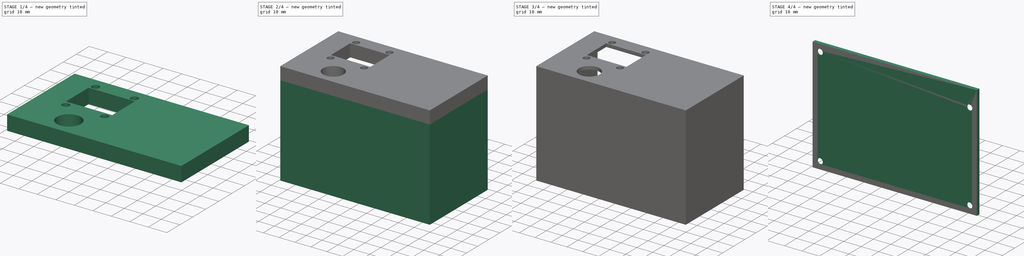
[diagram: build sequence overview — one tinted view per stage of 4, left to right]
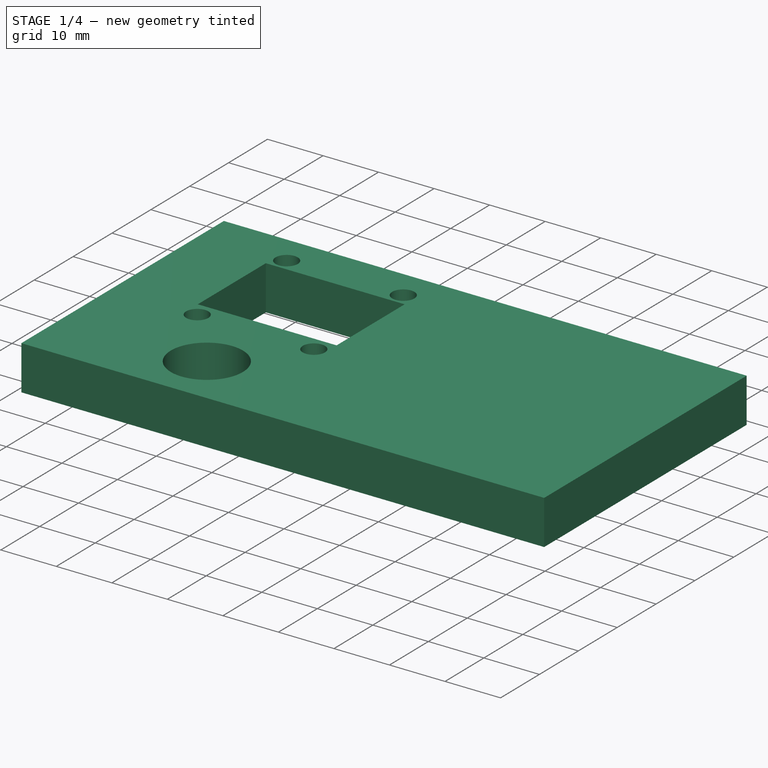
[diagram: stage 1 of 4 — iso view after this stage's code; geometry added in this stage tinted green]
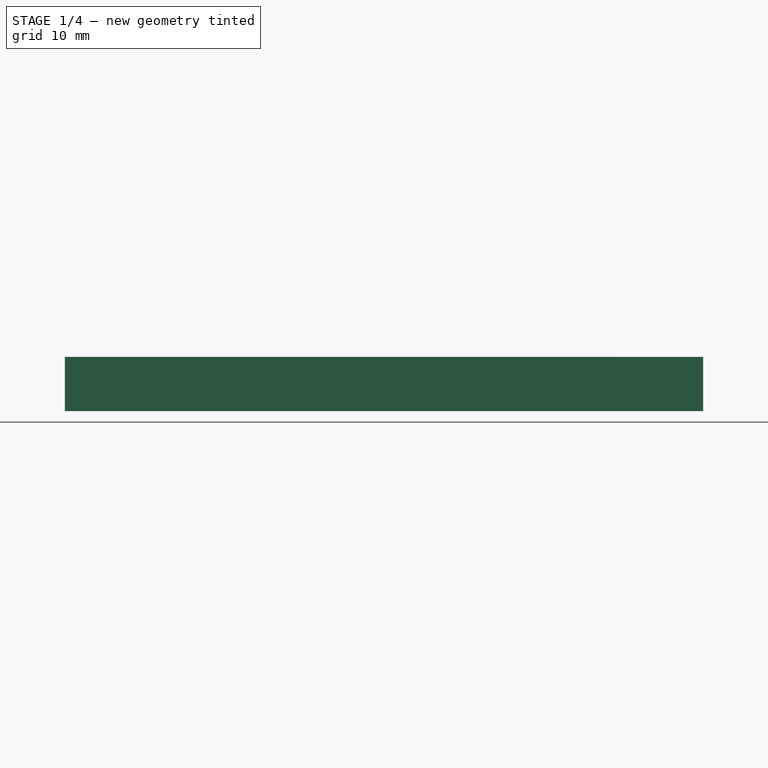
[diagram: stage 1 of 4 — front view after this stage's code; geometry added in this stage tinted green]
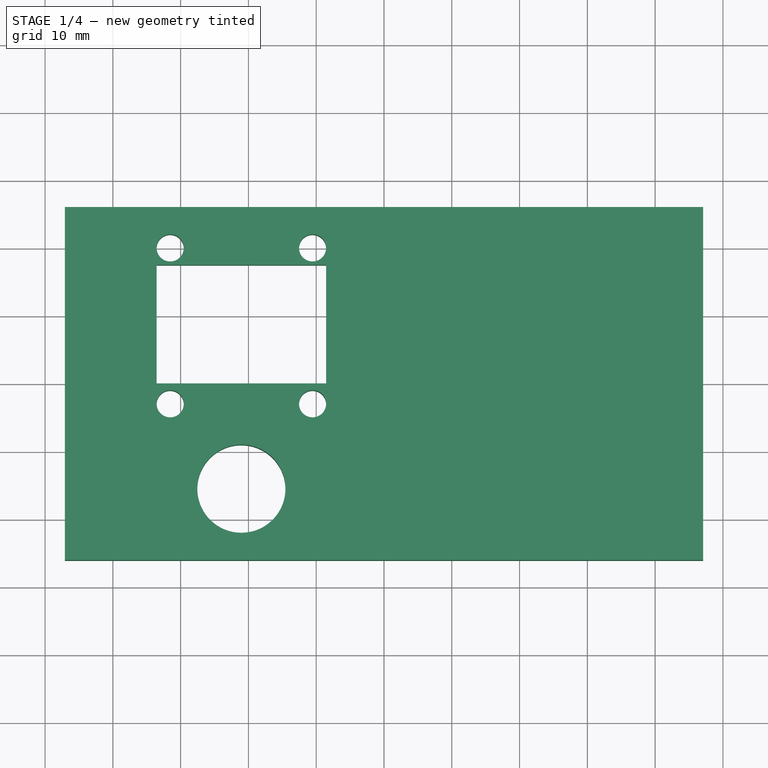
[diagram: stage 1 of 4 — top view after this stage's code; geometry added in this stage tinted green]
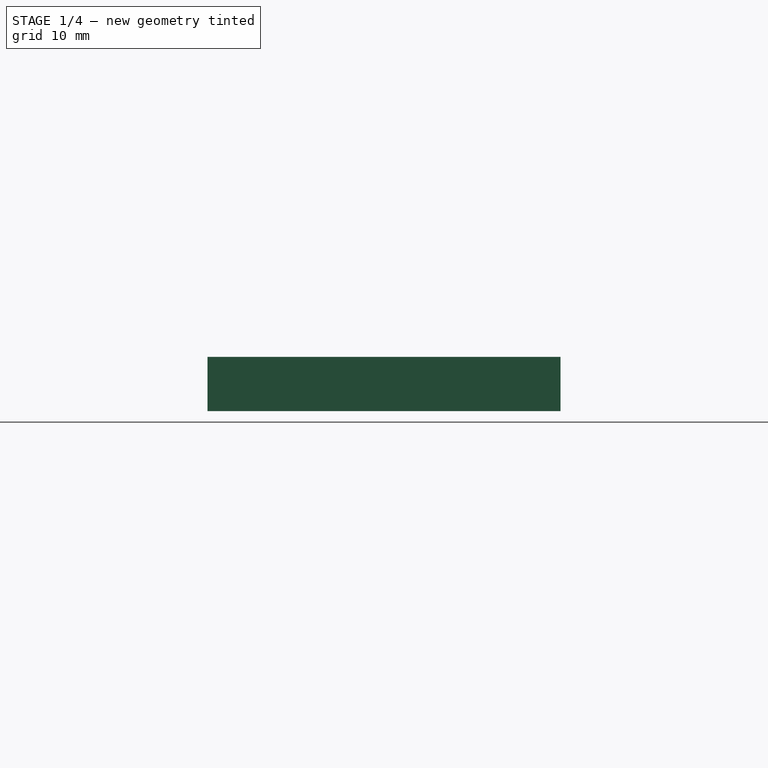
[diagram: stage 1 of 4 — right view after this stage's code; geometry added in this stage tinted green]
FCSTD DOCUMENT  (FreeCAD 0.20RUnknown)
Label: puzzle_case
License: All rights reserved
LicenseURL: http://en.wikipedia.org/wiki/All_rights_reserved
objects: Sketcher::SketchObject×11, PartDesign::Pad×7, PartDesign::Pocket×4, PartDesign::Body×2, PartDesign::ShapeBinder×1, PartDesign::Chamfer×1
note: 38 computed .brp shape members not serialized (recipe doc carries the construction recipe); baked Part::Feature solids carry a one-line shape summary decoded from their .brp

FEATURE [Sketcher::SketchObject] Sketch
  FullyConstrained = true
  MapMode = 5
  Support = -> [XY_Plane]
  expr: Constraints[53] = 90mm + 2 * .Constraints.wall_thickness
  sketch-geometry (26):
    g0: LineSegment StartX=-47.08 StartY=26.04 StartZ=0 EndX=47.08 EndY=26.04 EndZ=0
    g1: LineSegment StartX=47.08 StartY=26.04 StartZ=0 EndX=47.08 EndY=-26.04 EndZ=0
    g2: LineSegment StartX=47.08 StartY=-26.04 StartZ=0 EndX=-47.08 EndY=-26.04 EndZ=0
    g3: LineSegment StartX=-47.08 StartY=-26.04 StartZ=0 EndX=-47.08 EndY=26.04 EndZ=0
    g4: LineSegment StartX=-33.54 StartY=22.0133 StartZ=0 EndX=-8.54 EndY=22.0133 EndZ=0
    g5: LineSegment StartX=-8.54 StartY=22.0133 StartZ=0 EndX=-8.54 EndY=-4.98667 EndZ=0
    g6: LineSegment StartX=-8.54 StartY=-4.98667 StartZ=0 EndX=-33.54 EndY=-4.98667 EndZ=0
    g7: LineSegment StartX=-33.54 StartY=-4.98667 StartZ=0 EndX=-33.54 EndY=22.0133 EndZ=0
    g8: Circle CenterX=-10.54 CenterY=20.0133 CenterZ=0 NormalX=0 NormalY=0 NormalZ=1 AngleXU=0 Radius=2
    g9: Circle CenterX=-31.54 CenterY=-2.98667 CenterZ=0 NormalX=0 NormalY=0 NormalZ=1 AngleXU=0 Radius=2
    g10: Circle CenterX=-31.54 CenterY=20.0133 CenterZ=0 NormalX=0 NormalY=0 NormalZ=1 AngleXU=0 Radius=2
    g11: Circle CenterX=-10.54 CenterY=-2.98667 CenterZ=0 NormalX=0 NormalY=0 NormalZ=1 AngleXU=0 Radius=2
    g12: LineSegment StartX=-33.54 StartY=17.5133 StartZ=0 EndX=-8.54 EndY=17.5133 EndZ=0
    g13: LineSegment StartX=-8.54 StartY=17.5133 StartZ=0 EndX=-8.54 EndY=0.0133333 EndZ=0
    g14: LineSegment StartX=-8.54 StartY=0.0133333 StartZ=0 EndX=-33.54 EndY=0.0133333 EndZ=0
    g15: LineSegment StartX=-33.54 StartY=0.0133333 StartZ=0 EndX=-33.54 EndY=17.5133 EndZ=0
    g16: Circle CenterX=-21.04 CenterY=-15.5133 CenterZ=0 NormalX=0 NormalY=0 NormalZ=1 AngleXU=0 Radius=6.5
    g17: LineSegment StartX=5 StartY=26.04 StartZ=0 EndX=45 EndY=26.04 EndZ=0
    g18: LineSegment StartX=45 StartY=26.04 StartZ=0 EndX=45 EndY=-23.96 EndZ=0
    g19: LineSegment StartX=45 StartY=-23.96 StartZ=0 EndX=5 EndY=-23.96 EndZ=0
    g20: LineSegment StartX=5 StartY=-23.96 StartZ=0 EndX=5 EndY=26.04 EndZ=0
    g21: LineSegment StartX=-47.08 StartY=-4.98667 StartZ=0 EndX=-33.54 EndY=-4.98667 EndZ=0
    g22: LineSegment StartX=-8.54 StartY=-4.98667 StartZ=0 EndX=5 EndY=-4.98667 EndZ=0
    g23: LineSegment StartX=-21.04 StartY=-4.98667 StartZ=0 EndX=-21.04 EndY=-9.01333 EndZ=0
    g24: LineSegment StartX=-21.04 StartY=-22.0133 StartZ=0 EndX=-21.04 EndY=-26.04 EndZ=0
    g25: LineSegment StartX=-33.54 StartY=26.04 StartZ=0 EndX=-33.54 EndY=22.0133 EndZ=0
  constraints (78):
    c: Coincident(g0,g1)
    c: Coincident(g1,g2)
    c: Coincident(g2,g3)
    c: Coincident(g3,g0)
    c: Horizontal(g0)
    c: Horizontal(g2)
    c: Vertical(g1)
    c: Vertical(g3)
    c: Coincident(g4,g5)
    c: Coincident(g5,g6)
    c: Coincident(g6,g7)
    c: Coincident(g7,g4)
    c: Horizontal(g4)
    c: Horizontal(g6)
    c: Vertical(g5)
    c: Vertical(g7)
    c: DistanceX(g4,g4) = 25
    c: DistanceY(g5,g5) = 27
    c: Radius(g8) = 2
    c: Tangent(g8,g4)
    c: Tangent(g8,g5)
    c: Equal(g8,g9)
    c: Equal(g8,g10)
    c: Equal(g11,g8)
    c: Tangent(g10,g4)
    c: Tangent(g10,g7)
    c: Tangent(g9,g7)
    c: Tangent(g11,g5)
    c: Tangent(g9,g6)
    c: Tangent(g11,g6)
    c: Coincident(g12,g13)
    c: Coincident(g13,g14)
    c: Coincident(g14,g15)
    c: Coincident(g15,g12)
    c: Horizontal(g12)
    c: Horizontal(g14)
    c: Vertical(g13)
    c: Vertical(g15)
    c: Distance(g12,g4) = 4.5
    c: Distance(g13,g6) = 5
    c: PointOnObject(g12,g7)
    c: PointOnObject(g12,g5)
    c: Radius(g16) = 6.5
    c: Coincident(g17,g18)
    c: Coincident(g18,g19)
    c: Coincident(g19,g20)
    c: Coincident(g20,g17)
    c: Horizontal(g17)
    c: Horizontal(g19)
    c: Vertical(g18)
    c: Vertical(g20)
    c: DistanceX(g19,g19) = 40  'pocket_width'
    c: DistanceY(g18,g18) = 50  'pocket_depth'
    c: DistanceX(g2,g2) = 94.16
    c: Distance(g17,g1) = 2.08  'wall_thickness'
    c: Distance(g18,g2) = 2.08
    c: PointOnObject(g17,g0)
    c: Horizontal(g21)
    c: PointOnObject(g21,g3)
    c: PointOnObject(g22,g20)
    c: Horizontal(g22)
    c: Equal(g22,g21)
    c: PointOnObject(g23,g16)
    c: Vertical(g23)
    c: PointOnObject(g16,g23)
    c: PointOnObject(g24,g16)
    c: PointOnObject(g24,g2)
    c: Vertical(g24)
    c: PointOnObject(g16,g24)
    c: Equal(g23,g24)
    c: Symmetric(g6,g5,g23)
    c: PointOnObject(g25,g0)
    c: Vertical(g25)
    c: Equal(g25,g23)
    c: Symmetric(g0,g1,g-1)
    c: Coincident(g21,g6)
    c: Coincident(g22,g5)
    c: Coincident(g25,g4)
FEATURE [PartDesign::Pad] Pad
  Direction = (0,0,1)
  Length = 8
  Length2 = 10
  Profile = -> Sketch
  ReferenceAxis = -> Sketch [N_Axis]
  Type = 0
FEATURE [Sketcher::SketchObject] Sketch001
  ExternalGeometry = -> [Pad]
  FullyConstrained = true
  MapMode = 5
  Placement = pos=(0,26.04,0) rot=(0,0.707107,0.707107;3.14159rad)
  Support = -> [Pad]
  expr: Constraints[10] = Sketch.Constraints.wall_thickness
  expr: Constraints[9] = Sketch.Constraints.pocket_width
  sketch-geometry (7):
    g0: LineSegment StartX=-45 StartY=6 StartZ=0 EndX=-5 EndY=6 EndZ=0
    g1: LineSegment StartX=-5 StartY=6 StartZ=0 EndX=-5 EndY=2 EndZ=0
    g2: LineSegment StartX=-5 StartY=2 StartZ=0 EndX=-45 EndY=2 EndZ=0
    g3: LineSegment StartX=-45 StartY=2 StartZ=0 EndX=-45 EndY=6 EndZ=0
    g4: GeomPoint X=-45 Y=4 Z=0
    g5: GeomPoint X=-47.08 Y=4 Z=0
    g6: LineSegment StartX=-47.08 StartY=4 StartZ=0 EndX=-45 EndY=4 EndZ=0
  constraints (16):
    c: Coincident(g0,g1)
    c: Coincident(g1,g2)
    c: Coincident(g2,g3)
    c: Coincident(g3,g0)
    c: Horizontal(g0)
    c: Horizontal(g2)
    c: Vertical(g1)
    c: Vertical(g3)
    c: DistanceY(g3,g3) = 4
    c: DistanceX(g0,g0) = 40
    c: Distance(g0,g-3) = 2.08
    c: Symmetric(g0,g2,g4)
    c: Symmetric(g-3,g-3,g5)
    c: Coincident(g6,g5)
    c: Coincident(g6,g4)
    c: Horizontal(g6)
FEATURE [PartDesign::Pocket] Pocket
  BaseFeature = -> Pad
  Direction = (0,-1,2e-16)
  Length = 50
  Length2 = 5
  Profile = -> Sketch001
  ReferenceAxis = -> Sketch001 [N_Axis]
  Type = 0
  expr: Length = Sketch.Constraints.pocket_depth
FEATURE [Sketcher::SketchObject] Sketch002
  ExternalGeometry = -> [Pocket]
  FullyConstrained = true
  MapMode = 5
  Placement = pos=(0,26.04,0) rot=(0,0.707107,0.707107;3.14159rad)
  Support = -> [Pocket]
  sketch-geometry (4):
    g0: LineSegment StartX=-5 StartY=6 StartZ=0 EndX=-1 EndY=6 EndZ=0
    g1: LineSegment StartX=-1 StartY=6 StartZ=0 EndX=-1 EndY=0 EndZ=0
    g2: LineSegment StartX=-1 StartY=0 StartZ=0 EndX=-5 EndY=0 EndZ=0
    g3: LineSegment StartX=-5 StartY=0 StartZ=0 EndX=-5 EndY=6 EndZ=0
  constraints (11):
    c: Coincident(g0,g1)
    c: Coincident(g1,g2)
    c: Coincident(g2,g3)
    c: Coincident(g3,g0)
    c: Horizontal(g0)
    c: Horizontal(g2)
    c: Vertical(g1)
    c: Vertical(g3)
    c: PointOnObject(g2,g-1)
    c: Coincident(g0,g-3)
    c: DistanceX(g0,g0) = 4
FEATURE [PartDesign::Pocket] Pocket001
  BaseFeature = -> Pocket
  Direction = (0,-1,2e-16)
  Length = 4
  Length2 = 5
  Profile = -> Sketch002
  ReferenceAxis = -> Sketch002 [N_Axis]
  Type = 0
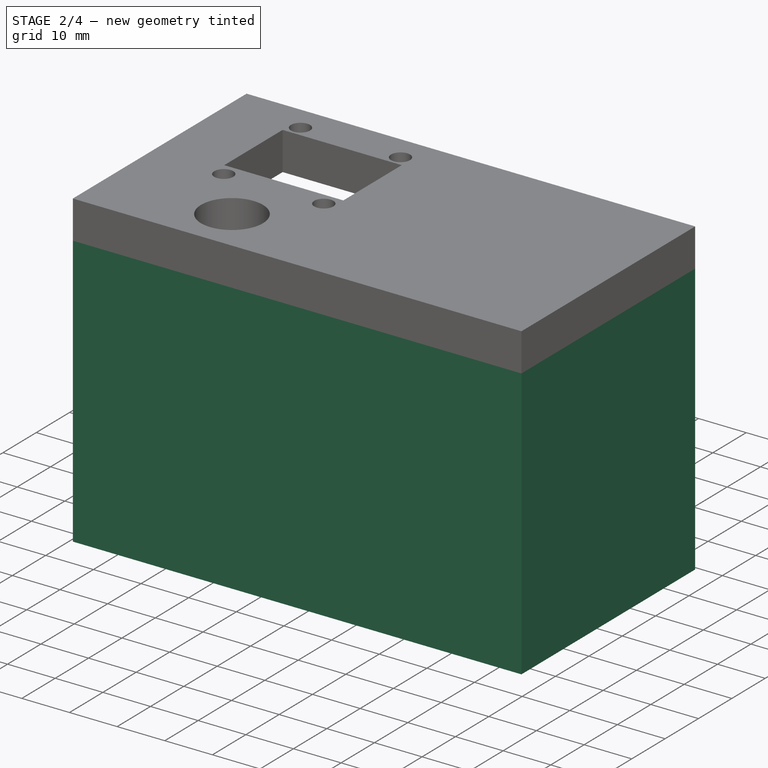
[diagram: stage 2 of 4 — iso view after this stage's code; geometry added in this stage tinted green]
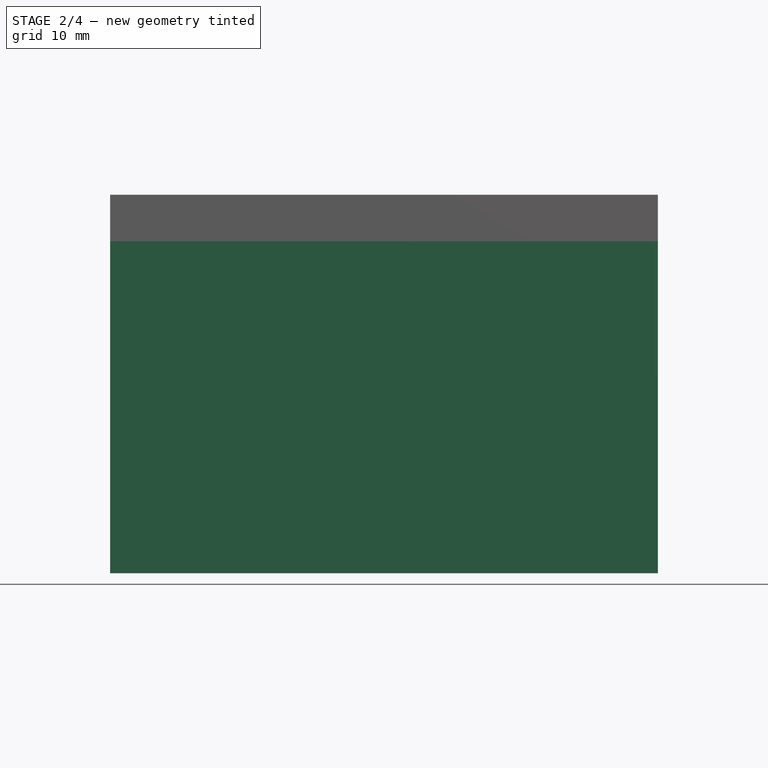
[diagram: stage 2 of 4 — front view after this stage's code; geometry added in this stage tinted green]
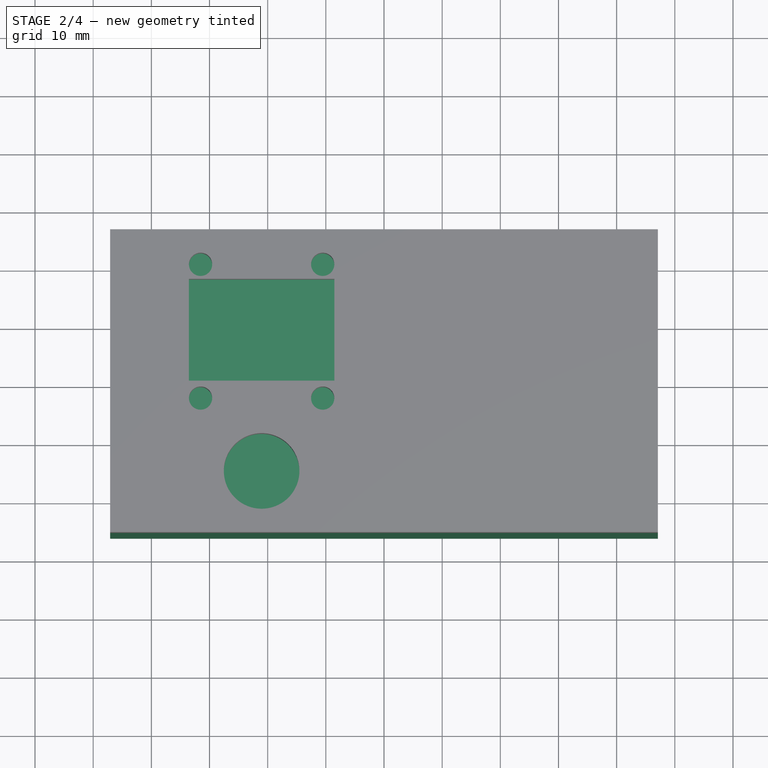
[diagram: stage 2 of 4 — top view after this stage's code; geometry added in this stage tinted green]
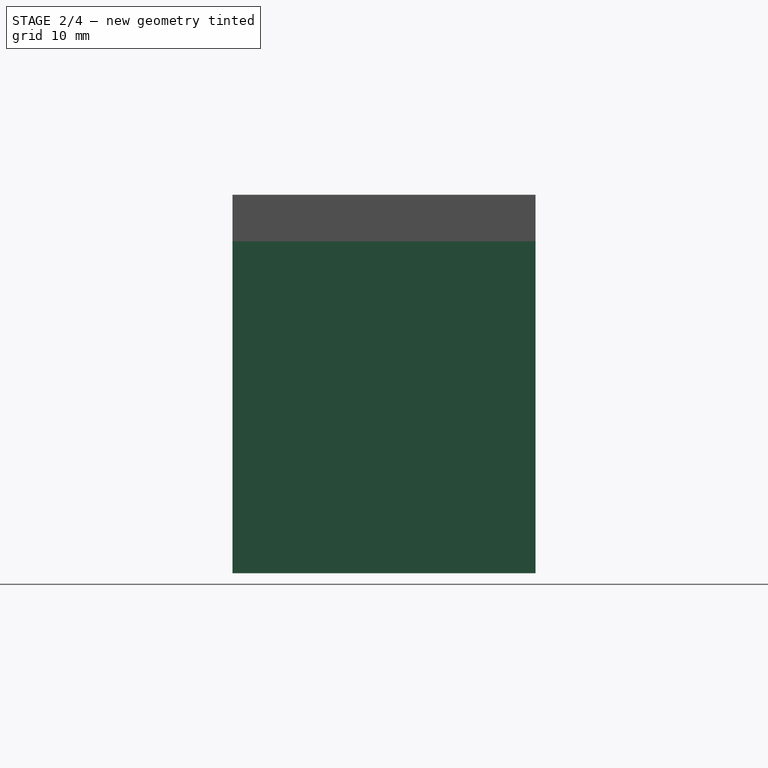
[diagram: stage 2 of 4 — right view after this stage's code; geometry added in this stage tinted green]
FEATURE [Sketcher::SketchObject] Sketch003
  ExternalGeometry = -> [Pocket001]
  FullyConstrained = true
  MapMode = 5
  Placement = pos=(0,0,0) rot=(1,0,0;3.14159rad)
  Support = -> [Pocket001]
  expr: Constraints[5] = Sketch.Constraints.wall_thickness
  expr: Constraints[6] = Sketch.Constraints.wall_thickness
  expr: Constraints[7] = Sketch.Constraints.wall_thickness
  sketch-geometry (8):
    g0: LineSegment StartX=-45 StartY=23.96 StartZ=0 EndX=45 EndY=23.96 EndZ=0
    g1: LineSegment StartX=45 StartY=23.96 StartZ=0 EndX=45 EndY=-26.04 EndZ=0
    g2: LineSegment StartX=-45 StartY=-26.04 StartZ=0 EndX=-45 EndY=23.96 EndZ=0
    g3: LineSegment StartX=-47.08 StartY=26.04 StartZ=0 EndX=47.08 EndY=26.04 EndZ=0
    g4: LineSegment StartX=47.08 StartY=26.04 StartZ=0 EndX=47.08 EndY=-26.04 EndZ=0
    g5: LineSegment StartX=-47.08 StartY=-26.04 StartZ=0 EndX=-47.08 EndY=26.04 EndZ=0
    g6: LineSegment StartX=-47.08 StartY=-26.04 StartZ=0 EndX=-45 EndY=-26.04 EndZ=0
    g7: LineSegment StartX=45 StartY=-26.04 StartZ=0 EndX=47.08 EndY=-26.04 EndZ=0
  constraints (22):
    c: Coincident(g0,g1)
    c: Coincident(g2,g0)
    c: Horizontal(g0)
    c: Vertical(g1)
    c: Vertical(g2)
    c: Distance(g0,g-4) = 2.08
    c: Distance(g0,g-5) = 2.08
    c: Distance(g2,g-3) = 2.08
    c: Coincident(g3,g4)
    c: Coincident(g5,g3)
    c: Horizontal(g3)
    c: Vertical(g4)
    c: Vertical(g5)
    c: Coincident(g-4,g3)
    c: Coincident(g-6,g4)
    c: PointOnObject(g2,g-8)
    c: PointOnObject(g1,g-6)
    c: Coincident(g6,g5)
    c: Coincident(g6,g2)
    c: Horizontal(g6)
    c: Coincident(g7,g1)
    c: Coincident(g7,g4)
FEATURE [PartDesign::Pad] Pad001
  BaseFeature = -> Pocket001
  Direction = (0,0,-1)
  Length = 55
  Length2 = 10
  Profile = -> Sketch003
  ReferenceAxis = -> Sketch003 [N_Axis]
  Type = 0
FEATURE [Sketcher::SketchObject] Sketch004
  ExternalGeometry = -> [Pad001]
  FullyConstrained = true
  MapMode = 5
  Placement = pos=(0,0,-55) rot=(1,0,0;3.14159rad)
  Support = -> [Pad001]
  sketch-geometry (4):
    g0: LineSegment StartX=-47.08 StartY=26.04 StartZ=0 EndX=47.08 EndY=26.04 EndZ=0
    g1: LineSegment StartX=47.08 StartY=26.04 StartZ=0 EndX=47.08 EndY=-26.04 EndZ=0
    g2: LineSegment StartX=47.08 StartY=-26.04 StartZ=0 EndX=-47.08 EndY=-26.04 EndZ=0
    g3: LineSegment StartX=-47.08 StartY=-26.04 StartZ=0 EndX=-47.08 EndY=26.04 EndZ=0
  constraints (10):
    c: Coincident(g0,g1)
    c: Coincident(g1,g2)
    c: Coincident(g2,g3)
    c: Coincident(g3,g0)
    c: Horizontal(g0)
    c: Horizontal(g2)
    c: Vertical(g1)
    c: Vertical(g3)
    c: Coincident(g-3,g0)
    c: Coincident(g1,g-4)
FEATURE [PartDesign::Pad] Pad002
  BaseFeature = -> Pad001
  Direction = (0,0,-1)
  Length = 2.08
  Length2 = 10
  Profile = -> Sketch004
  ReferenceAxis = -> Sketch004 [N_Axis]
  Type = 0
  expr: Length = Sketch.Constraints.wall_thickness
FEATURE [Sketcher::SketchObject] Sketch005
  ExternalGeometry = -> [Pad002]
  FullyConstrained = true
  MapMode = 5
  Placement = pos=(0,-23.96,0) rot=(0,0.707107,0.707107;3.14159rad)
  Support = -> [Pad002]
  sketch-geometry (16):
    g0: LineSegment StartX=-30 StartY=-37 StartZ=0 EndX=-25 EndY=-37 EndZ=0
    g1: LineSegment StartX=-25 StartY=-37 StartZ=0 EndX=-25 EndY=-42 EndZ=0
    g2: LineSegment StartX=-25 StartY=-42 StartZ=0 EndX=-30 EndY=-42 EndZ=0
    g3: LineSegment StartX=-30 StartY=-42 StartZ=0 EndX=-30 EndY=-37 EndZ=0
    g4: LineSegment StartX=-30 StartY=-27 StartZ=0 EndX=-25 EndY=-27 EndZ=0
    g5: LineSegment StartX=-25 StartY=-27 StartZ=0 EndX=-25 EndY=-32 EndZ=0
    g6: LineSegment StartX=-25 StartY=-32 StartZ=0 EndX=-30 EndY=-32 EndZ=0
    g7: LineSegment StartX=-30 StartY=-32 StartZ=0 EndX=-30 EndY=-27 EndZ=0
    g8: LineSegment StartX=-5 StartY=-27 StartZ=0 EndX=5.3e-15 EndY=-27 EndZ=0
    g9: LineSegment StartX=5.3e-15 StartY=-27 StartZ=0 EndX=5.3e-15 EndY=-32 EndZ=0
    g10: LineSegment StartX=5.3e-15 StartY=-32 StartZ=0 EndX=-5 EndY=-32 EndZ=0
    g11: LineSegment StartX=-5 StartY=-32 StartZ=0 EndX=-5 EndY=-27 EndZ=0
    g12: LineSegment StartX=-5 StartY=-37 StartZ=0 EndX=5.3e-15 EndY=-37 EndZ=0
    g13: LineSegment StartX=5.3e-15 StartY=-37 StartZ=0 EndX=5.3e-15 EndY=-42 EndZ=0
    g14: LineSegment StartX=5.3e-15 StartY=-42 StartZ=0 EndX=-5 EndY=-42 EndZ=0
    g15: LineSegment StartX=-5 StartY=-42 StartZ=0 EndX=-5 EndY=-37 EndZ=0
  constraints (48):
    c: Coincident(g0,g1)
    c: Coincident(g1,g2)
    c: Coincident(g2,g3)
    c: Coincident(g3,g0)
    c: Horizontal(g0)
    c: Horizontal(g2)
    c: Vertical(g1)
    c: Vertical(g3)
    c: Coincident(g4,g5)
    c: Coincident(g5,g6)
    c: Coincident(g6,g7)
    c: Coincident(g7,g4)
    c: Horizontal(g4)
    c: Horizontal(g6)
    c: Vertical(g5)
    c: Vertical(g7)
    c: PointOnObject(g0,g7)
    c: PointOnObject(g0,g5)
    c: Distance(g6,g0) = 5
    c: DistanceY(g3,g3) = 5
    c: Equal(g3,g7)
    c: DistanceX(g4,g4) = 5
    c: Distance(g0,g-3) = 18
    c: Coincident(g8,g9)
    c: Coincident(g9,g10)
    c: Coincident(g10,g11)
    c: Coincident(g11,g8)
    c: Horizontal(g8)
    c: Horizontal(g10)
    c: Vertical(g9)
    c: Vertical(g11)
    c: Coincident(g12,g13)
    c: Coincident(g13,g14)
    c: Coincident(g14,g15)
    c: Coincident(g15,g12)
    c: Horizontal(g12)
    c: Horizontal(g14)
    c: Vertical(g13)
    c: Vertical(g15)
    c: PointOnObject(g10,g15)
    c: PointOnObject(g9,g13)
    c: Equal(g15,g11)
    c: Equal(g8,g4)
    c: Equal(g15,g3)
    c: PointOnObject(g12,g0)
    c: PointOnObject(g5,g10)
    c: Distance(g4,g11) = 20
    c: Distance(g4,g-4) = 15
FEATURE [PartDesign::Pad] Pad003
  BaseFeature = -> Pad002
  Direction = (0,1,-2e-16)
  Length = 3
  Length2 = 10
  Profile = -> Sketch005
  ReferenceAxis = -> Sketch005 [N_Axis]
  Type = 0
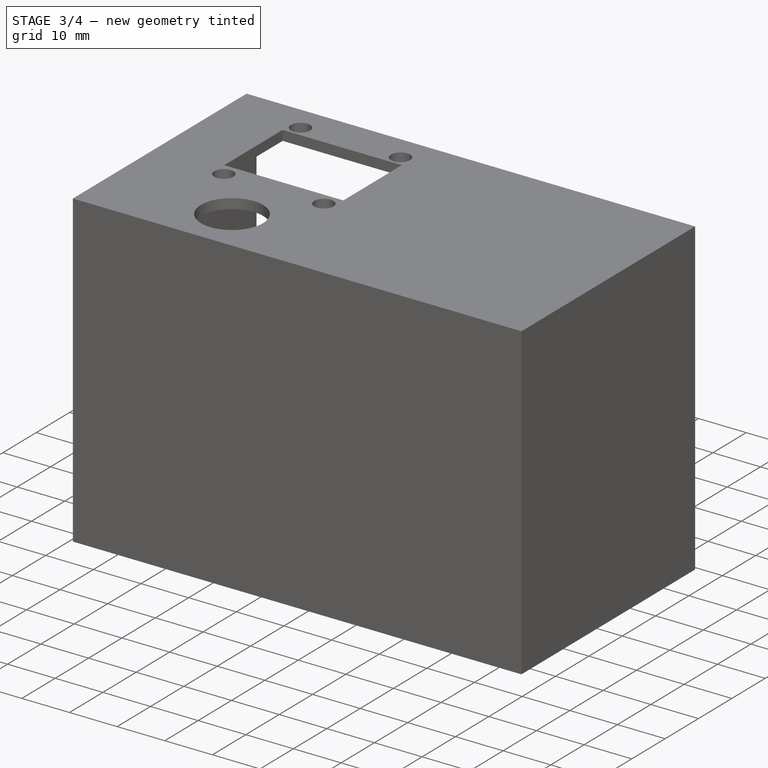
[diagram: stage 3 of 4 — iso view after this stage's code; geometry added in this stage tinted green]
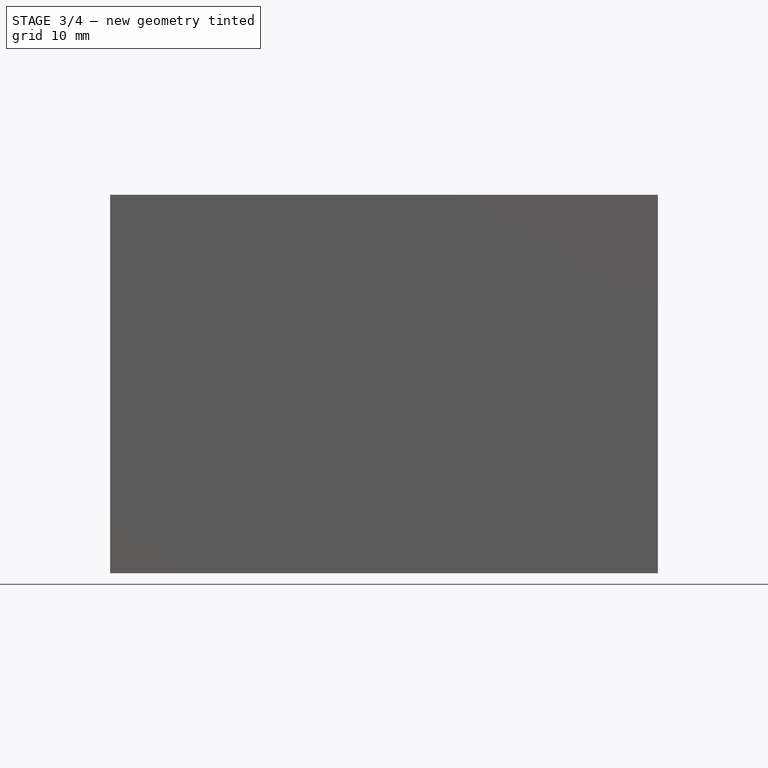
[diagram: stage 3 of 4 — front view after this stage's code; geometry added in this stage tinted green]
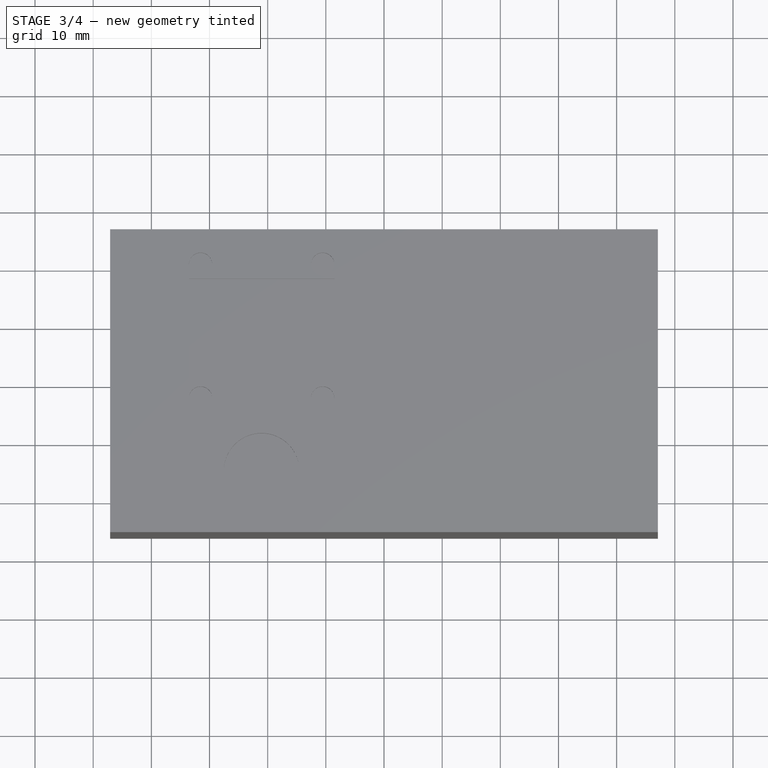
[diagram: stage 3 of 4 — top view after this stage's code; geometry added in this stage tinted green]
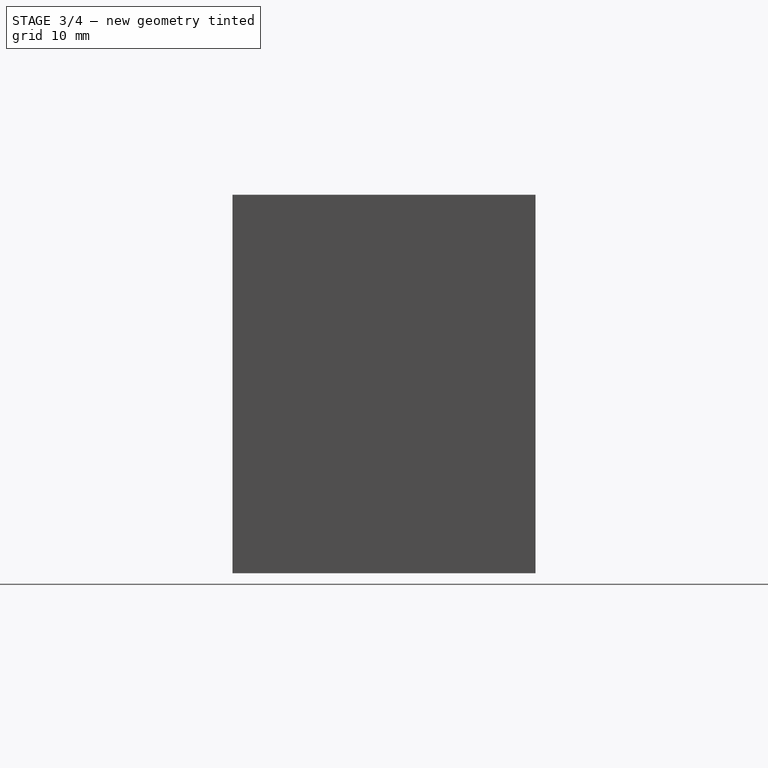
[diagram: stage 3 of 4 — right view after this stage's code; geometry added in this stage tinted green]
FEATURE [Sketcher::SketchObject] Sketch006
  ExternalGeometry = -> [Pad003]
  FullyConstrained = true
  MapMode = 5
  Placement = pos=(0,-20.96,4.5e-15) rot=(0,0.707107,0.707107;3.14159rad)
  Support = -> [Pad003]
  sketch-geometry (8):
    g0: LineSegment StartX=-30 StartY=-27 StartZ=0 EndX=-25 EndY=-27 EndZ=0
    g1: LineSegment StartX=-25 StartY=-27 StartZ=0 EndX=-25 EndY=-42 EndZ=0
    g2: LineSegment StartX=-25 StartY=-42 StartZ=0 EndX=-30 EndY=-42 EndZ=0
    g3: LineSegment StartX=-30 StartY=-42 StartZ=0 EndX=-30 EndY=-27 EndZ=0
    g4: LineSegment StartX=-5 StartY=-27 StartZ=0 EndX=0 EndY=-27 EndZ=0
    g5: LineSegment StartX=0 StartY=-27 StartZ=0 EndX=0 EndY=-42 EndZ=0
    g6: LineSegment StartX=0 StartY=-42 StartZ=0 EndX=-5 EndY=-42 EndZ=0
    g7: LineSegment StartX=-5 StartY=-42 StartZ=0 EndX=-5 EndY=-27 EndZ=0
  constraints (20):
    c: Coincident(g0,g1)
    c: Coincident(g1,g2)
    c: Coincident(g2,g3)
    c: Coincident(g3,g0)
    c: Horizontal(g0)
    c: Horizontal(g2)
    c: Vertical(g1)
    c: Vertical(g3)
    c: Coincident(g0,g-6)
    c: Coincident(g1,g-5)
    c: Coincident(g4,g5)
    c: Coincident(g5,g6)
    c: Coincident(g6,g7)
    c: Coincident(g7,g4)
    c: Horizontal(g4)
    c: Horizontal(g6)
    c: Vertical(g5)
    c: Vertical(g7)
    c: Coincident(g4,g-4)
    c: Coincident(g5,g-3)
FEATURE [PartDesign::Pad] Pad004
  BaseFeature = -> Pad003
  Direction = (0,1,-2e-16)
  Length = 2
  Length2 = 10
  Profile = -> Sketch006
  ReferenceAxis = -> Sketch006 [N_Axis]
  Type = 0
FEATURE [Sketcher::SketchObject] Sketch007
  ExternalGeometry = -> [Pad004]
  FullyConstrained = true
  MapMode = 5
  Placement = pos=(0,0,0) rot=(1,0,0;3.14159rad)
  Support = -> [Pad004]
  sketch-geometry (5):
    g0: GeomPoint X=0 Y=-26.04 Z=0
    g1: LineSegment StartX=-45 StartY=23.96 StartZ=0 EndX=0 EndY=23.96 EndZ=0
    g2: LineSegment StartX=0 StartY=23.96 StartZ=0 EndX=0 EndY=-26.04 EndZ=0
    g3: LineSegment StartX=0 StartY=-26.04 StartZ=0 EndX=-45 EndY=-26.04 EndZ=0
    g4: LineSegment StartX=-45 StartY=-26.04 StartZ=0 EndX=-45 EndY=23.96 EndZ=0
  constraints (12):
    c: PointOnObject(g0,g-2)
    c: PointOnObject(g0,g-5)
    c: Coincident(g1,g2)
    c: Coincident(g2,g3)
    c: Coincident(g3,g4)
    c: Coincident(g4,g1)
    c: Horizontal(g1)
    c: Horizontal(g3)
    c: Vertical(g2)
    c: Vertical(g4)
    c: Coincident(g1,g-4)
    c: Coincident(g2,g0)
FEATURE [PartDesign::Pocket] Pocket002
  BaseFeature = -> Pad004
  Direction = (0,0,1)
  Length = 5.92
  Length2 = 5
  Profile = -> Sketch007
  ReferenceAxis = -> Sketch007 [N_Axis]
  Type = 0
  expr: Length = Pad.Length - Sketch.Constraints.wall_thickness
FEATURE [Sketcher::SketchObject] Sketch008
  ExternalGeometry = -> [Pocket002]
  FullyConstrained = true
  MapMode = 5
  Placement = pos=(-45,0,0) rot=(0.57735,0.57735,0.57735;2.0944rad)
  Support = -> [Pocket002]
  sketch-geometry (1):
    g0: Circle CenterX=-8.96 CenterY=-15 CenterZ=0 NormalX=0 NormalY=0 NormalZ=1 AngleXU=0 Radius=6
  constraints (3):
    c: Distance(g0,g-5) = 15
    c: Distance(g0,g-8) = 40
    c: Radius(g0) = 6
FEATURE [PartDesign::Pocket] Pocket003
  BaseFeature = -> Pocket002
  Direction = (-1,0,0)
  Length = 5
  Length2 = 5
  Profile = -> Sketch008
  ReferenceAxis = -> Sketch008 [N_Axis]
  Type = 1
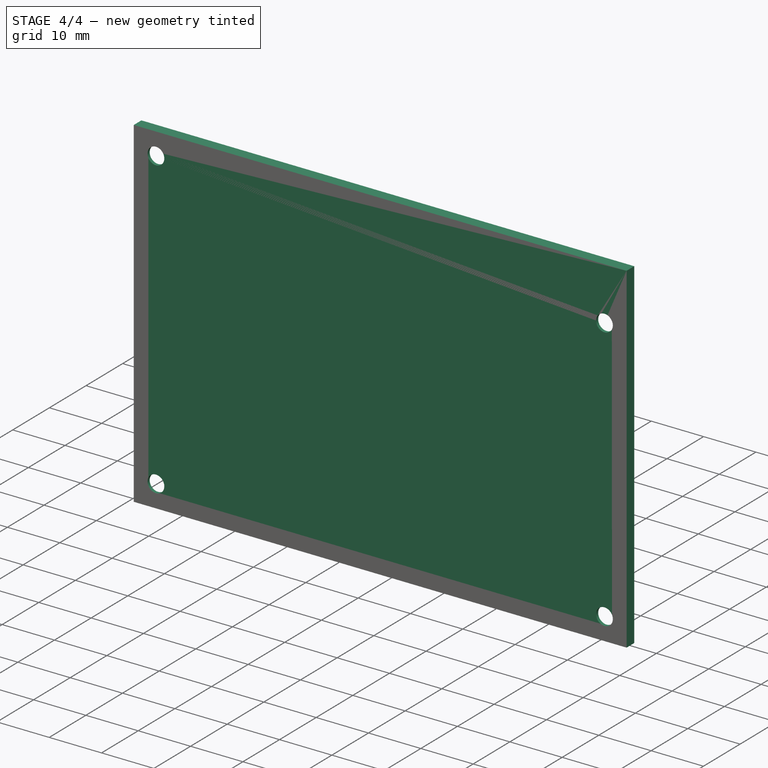
[diagram: stage 4 of 4 — iso view after this stage's code; geometry added in this stage tinted green]
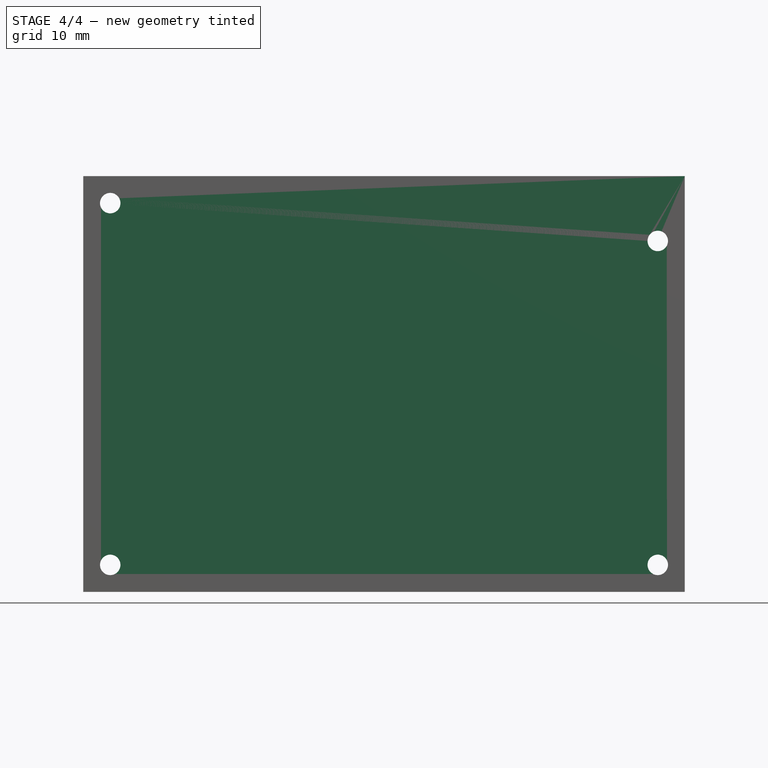
[diagram: stage 4 of 4 — front view after this stage's code; geometry added in this stage tinted green]
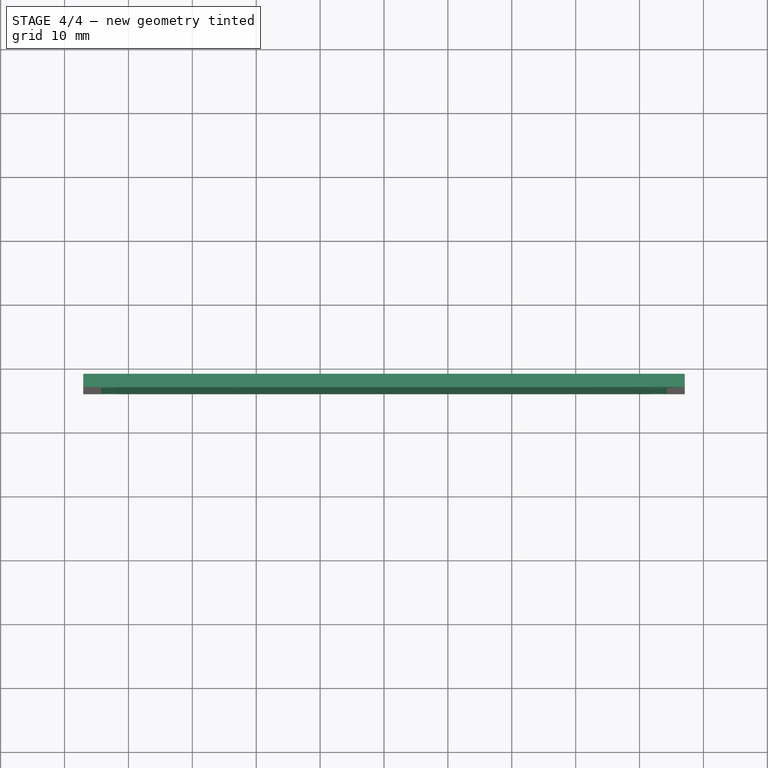
[diagram: stage 4 of 4 — top view after this stage's code; geometry added in this stage tinted green]
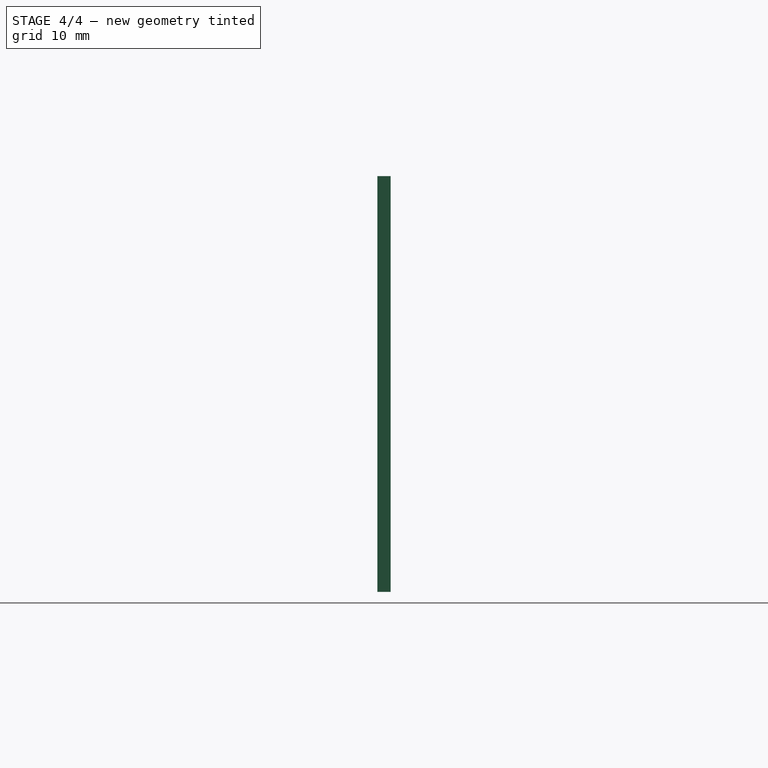
[diagram: stage 4 of 4 — right view after this stage's code; geometry added in this stage tinted green]
FEATURE [Sketcher::SketchObject] Sketch009
  ExternalGeometry = -> [Pocket003]
  FullyConstrained = true
  MapMode = 5
  Placement = pos=(0,26.04,0) rot=(0,0.707107,0.707107;3.14159rad)
  Support = -> [Pocket003]
  expr: Constraints[2] = 2.15mm + Sketch.Constraints.wall_thickness
  sketch-geometry (8):
    g0: Circle CenterX=-42.85 CenterY=-2.15 CenterZ=0 NormalX=0 NormalY=0 NormalZ=1 AngleXU=0 Radius=2.15
    g1: Circle CenterX=-42.85 CenterY=-2.15 CenterZ=0 NormalX=0 NormalY=0 NormalZ=1 AngleXU=0 Radius=4.23
    g2: Circle CenterX=42.85 CenterY=-52.85 CenterZ=0 NormalX=0 NormalY=0 NormalZ=1 AngleXU=0 Radius=2.15
    g3: Circle CenterX=42.85 CenterY=-52.85 CenterZ=0 NormalX=0 NormalY=0 NormalZ=1 AngleXU=0 Radius=4.23
    g4: Circle CenterX=42.85 CenterY=3.77 CenterZ=0 NormalX=0 NormalY=0 NormalZ=1 AngleXU=0 Radius=2.15
    g5: Circle CenterX=42.85 CenterY=3.77 CenterZ=0 NormalX=0 NormalY=0 NormalZ=1 AngleXU=0 Radius=4.23
    g6: Circle CenterX=-42.85 CenterY=-52.85 CenterZ=0 NormalX=0 NormalY=0 NormalZ=1 AngleXU=0 Radius=2.15
    g7: Circle CenterX=-42.85 CenterY=-52.85 CenterZ=0 NormalX=0 NormalY=0 NormalZ=1 AngleXU=0 Radius=4.23
  constraints (20):
    c: Radius(g0) = 2.15
    c: Coincident(g1,g0)
    c: Radius(g1) = 4.23
    c: Tangent(g-3,g0)
    c: Tangent(g-4,g0)
    c: Coincident(g3,g2)
    c: Coincident(g5,g4)
    c: Coincident(g7,g6)
    c: Equal(g0,g2)
    c: Equal(g2,g6)
    c: Equal(g6,g4)
    c: Equal(g3,g5)
    c: Equal(g5,g7)
    c: Equal(g7,g1)
    c: Tangent(g6,g-4)
    c: Tangent(g6,g-5)
    c: Tangent(g2,g-5)
    c: Tangent(g2,g-6)
    c: Tangent(g4,g-7)
    c: Tangent(g4,g-8)
FEATURE [PartDesign::Pad] Pad005
  BaseFeature = -> Pocket003
  Direction = (0,1,-2e-16)
  Length = 10
  Length2 = 10
  Profile = -> Sketch009
  ReferenceAxis = -> Sketch009 [N_Axis]
  Refine = true
  Reversed = true
  Type = 0
FEATURE [PartDesign::Body] Body
  Group = -> [Sketch,Pad,Sketch001,Pocket,Sketch002,Pocket001,Sketch003,Pad001,Sketch004,Pad002,Sketch005,Pad003,Sketch006,Pad004,Sketch007,Pocket002,Sketch008,Pocket003,Sketch009,Pad005]
  Origin = -> Origin
  Tip = -> Pad005
FEATURE [PartDesign::ShapeBinder] ShapeBinder
  Support = -> [Pad005]
  TraceSupport = false
FEATURE [Sketcher::SketchObject] Sketch010
  ExternalGeometry = -> [ShapeBinder]
  FullyConstrained = true
  MapMode = 5
  Placement = pos=(-7e-16,26.04,-1e-16) rot=(0,0.707107,0.707107;3.14159rad)
  Support = -> [ShapeBinder]
  sketch-geometry (8):
    g0: LineSegment StartX=-47.08 StartY=8 StartZ=0 EndX=47.08 EndY=8 EndZ=0
    g1: LineSegment StartX=47.08 StartY=8 StartZ=0 EndX=47.08 EndY=-57.08 EndZ=0
    g2: LineSegment StartX=47.08 StartY=-57.08 StartZ=0 EndX=-47.08 EndY=-57.08 EndZ=0
    g3: LineSegment StartX=-47.08 StartY=-57.08 StartZ=0 EndX=-47.08 EndY=8 EndZ=0
    g4: Circle CenterX=-42.85 CenterY=-2.15 CenterZ=0 NormalX=0 NormalY=0 NormalZ=1 AngleXU=0 Radius=1.6
    g5: Circle CenterX=42.85 CenterY=3.77 CenterZ=0 NormalX=0 NormalY=0 NormalZ=1 AngleXU=0 Radius=1.6
    g6: Circle CenterX=42.85 CenterY=-52.85 CenterZ=0 NormalX=0 NormalY=0 NormalZ=1 AngleXU=0 Radius=1.6
    g7: Circle CenterX=-42.85 CenterY=-52.85 CenterZ=0 NormalX=0 NormalY=0 NormalZ=1 AngleXU=0 Radius=1.6
  constraints (18):
    c: Coincident(g0,g1)
    c: Coincident(g1,g2)
    c: Coincident(g2,g3)
    c: Coincident(g3,g0)
    c: Horizontal(g0)
    c: Horizontal(g2)
    c: Vertical(g1)
    c: Vertical(g3)
    c: Coincident(g0,g-7)
    c: Coincident(g1,g-8)
    c: Coincident(g4,g-3)
    c: Radius(g4) = 1.6
    c: Coincident(g5,g-4)
    c: Coincident(g6,g-5)
    c: Coincident(g7,g-6)
    c: Equal(g5,g6)
    c: Equal(g6,g7)
    c: Equal(g7,g4)
FEATURE [PartDesign::Pad] Pad006
  Direction = (0,1,-2e-16)
  Length = 2.08
  Length2 = 10
  Profile = -> Sketch010
  ReferenceAxis = -> Sketch010 [N_Axis]
  Type = 0
  expr: Length = Sketch.Constraints.wall_thickness
FEATURE [PartDesign::Chamfer] Chamfer
  Angle = 45
  Base = -> Pad006 [Edge15,Edge24,Edge21,Edge18]
  BaseFeature = -> Pad006
  ChamferType = 0
  FlipDirection = false
  Size = 1.5
  Size2 = 1
  SupportTransform = false
  UseAllEdges = false
FEATURE [PartDesign::Body] Body001  label="Lid"
  Group = -> [ShapeBinder,Sketch010,Pad006,Chamfer]
  Origin = -> Origin001
  Tip = -> Chamfer
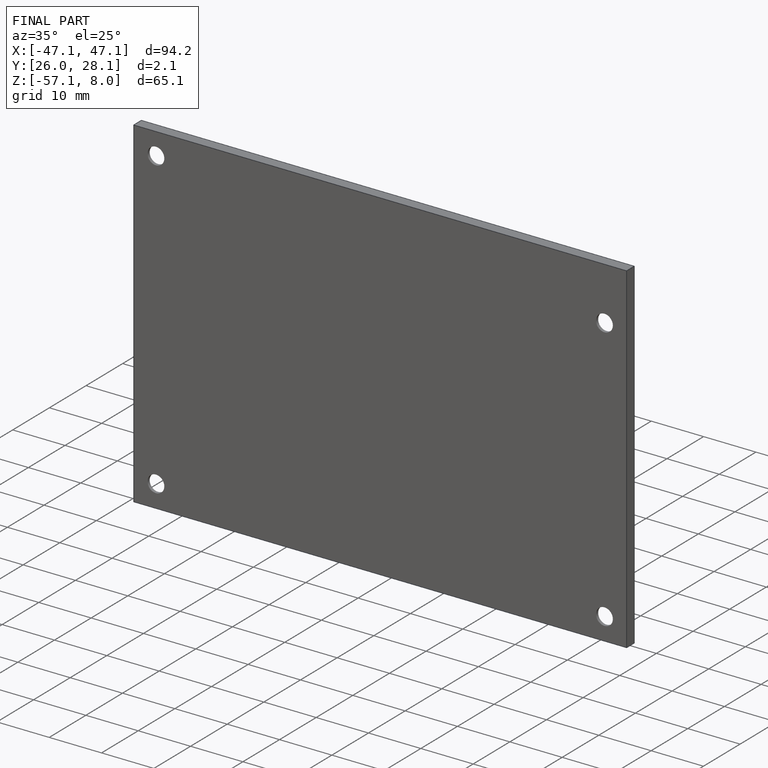
[diagram: finished part — iso view with bounding-box wireframe]
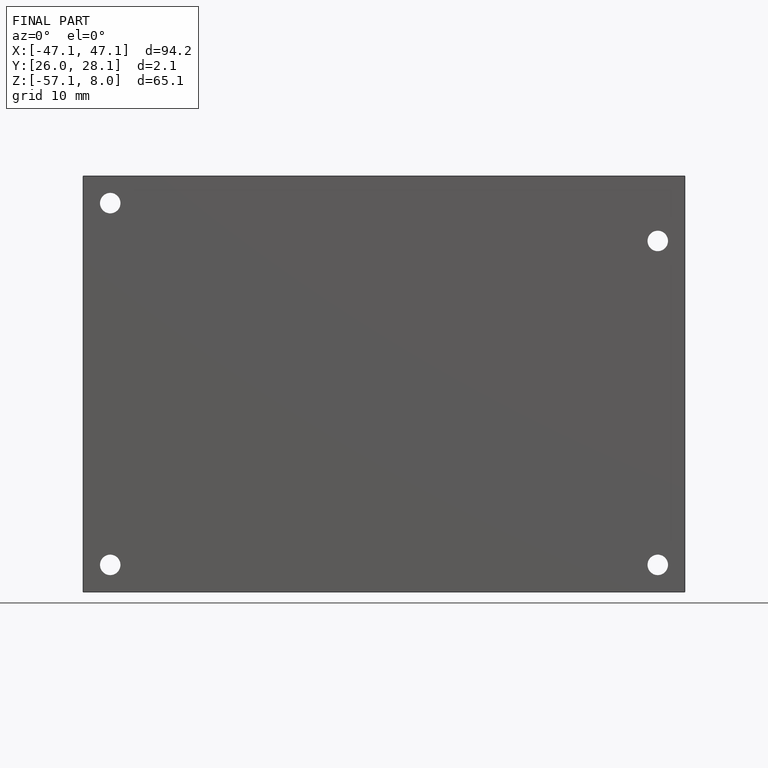
[diagram: finished part — front view with bounding-box wireframe]
